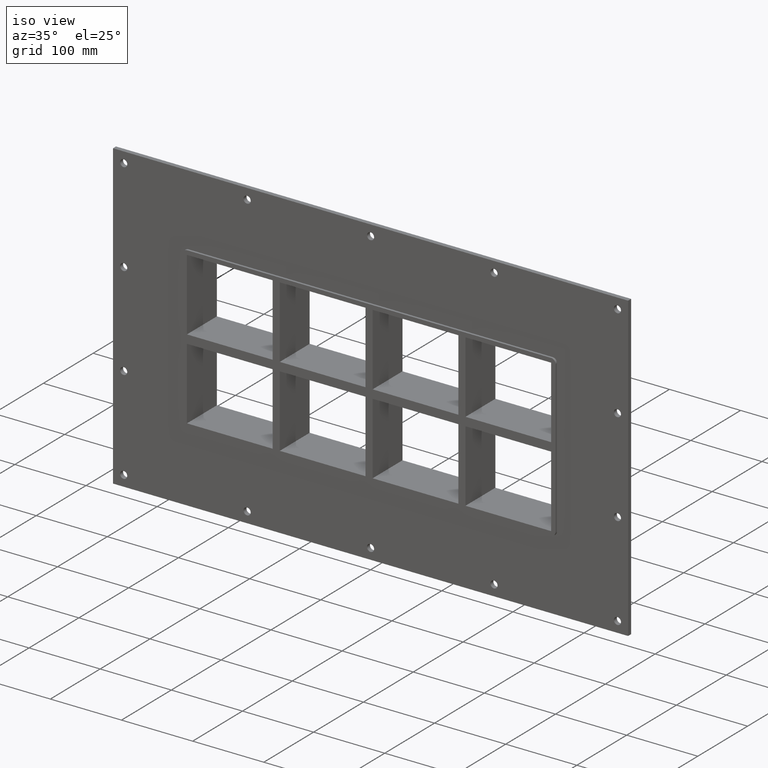
[diagram: clean part render]
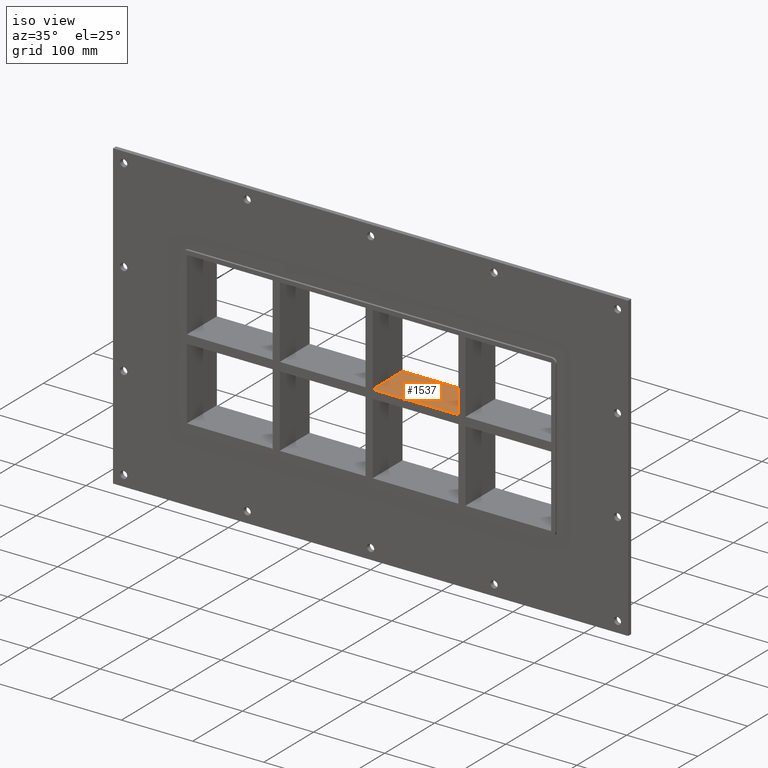
[diagram: same view with one face highlighted and labeled with its STEP entity id]
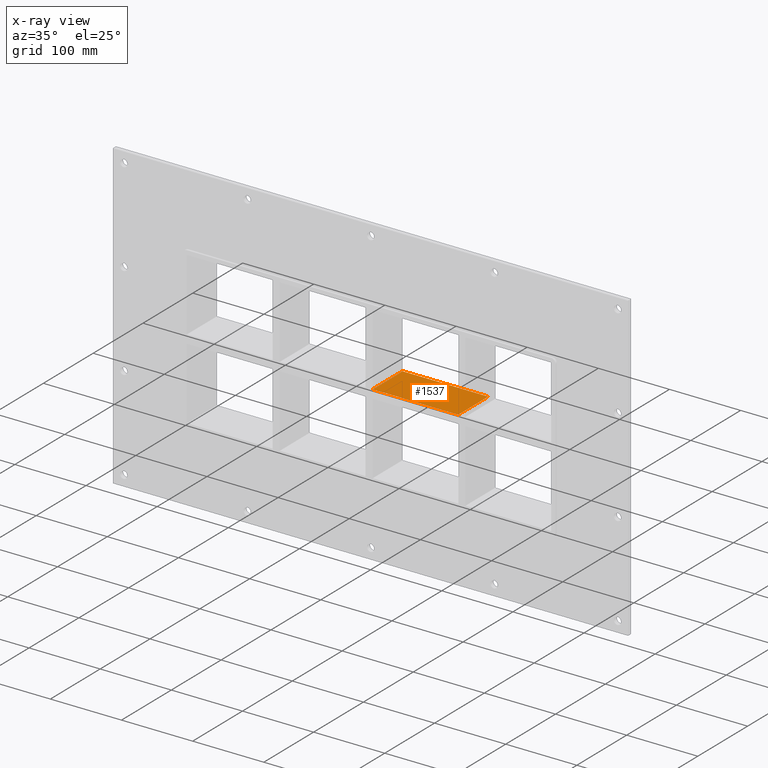
[diagram: x-ray of the same camera — body ghosted, the highlighted face saturated]
A machine part, iso view. The second image highlights one B-rep face of the part: STEP entity #1537.
The next image is the same camera in x-ray: the body ghosted, the highlighted face saturated — about 0% of this face is hidden behind the body in this view.
In plain terms, the highlighted planar face has unit normal (0, 0, 1).
Its self-contained STEP definition (entity closure, byte-faithful):
#465=CARTESIAN_POINT('',(125.49999999999861,-3.0,5.999999999999943));
#466=VERTEX_POINT('',#465);
#467=CARTESIAN_POINT('',(125.49999999999861,57.0,5.999999999999943));
#468=VERTEX_POINT('',#467);
#469=CARTESIAN_POINT('',(125.49999999999861,-3.0,5.999999999999943));
#470=DIRECTION('',(0.0,1.0,0.0));
#471=VECTOR('',#470,60.0);
#472=LINE('',#469,#471);
#473=EDGE_CURVE('',#466,#468,#472,.T.);
#705=CARTESIAN_POINT('',(5.000000000007283,57.0,5.999999999999943));
#706=VERTEX_POINT('',#705);
#707=CARTESIAN_POINT('',(5.000000000007283,-3.0,5.999999999999943));
#708=VERTEX_POINT('',#707);
#709=CARTESIAN_POINT('',(5.000000000007283,57.0,5.999999999999943));
#710=DIRECTION('',(0.0,-1.0,0.0));
#711=VECTOR('',#710,60.0);
#712=LINE('',#709,#711);
#713=EDGE_CURVE('',#706,#708,#712,.T.);
#950=CARTESIAN_POINT('',(5.000000000007276,-3.0,5.999999999999943));
#951=DIRECTION('',(1.0,0.0,0.0));
#952=VECTOR('',#951,120.49999999999136);
#953=LINE('',#950,#952);
#954=EDGE_CURVE('',#708,#466,#953,.T.);
#1299=CARTESIAN_POINT('',(5.000000000007276,57.0,5.999999999999943));
#1300=DIRECTION('',(1.0,0.0,0.0));
#1301=VECTOR('',#1300,120.49999999999136);
#1302=LINE('',#1299,#1301);
#1303=EDGE_CURVE('',#706,#468,#1302,.T.);
#1526=CARTESIAN_POINT('',(-255.99999999999972,-3.0,5.999999999999943));
#1527=DIRECTION('',(0.0,0.0,1.0));
#1528=DIRECTION('',(1.0,0.0,0.0));
#1529=AXIS2_PLACEMENT_3D('',#1526,#1527,#1528);
#1530=PLANE('',#1529);
#1531=ORIENTED_EDGE('',*,*,#473,.T.);
#1532=ORIENTED_EDGE('',*,*,#1303,.F.);
#1533=ORIENTED_EDGE('',*,*,#713,.T.);
#1534=ORIENTED_EDGE('',*,*,#954,.T.);
#1535=EDGE_LOOP('',(#1531,#1532,#1533,#1534));
#1536=FACE_OUTER_BOUND('',#1535,.T.);
#1537=ADVANCED_FACE('',(#1536),#1530,.T.);